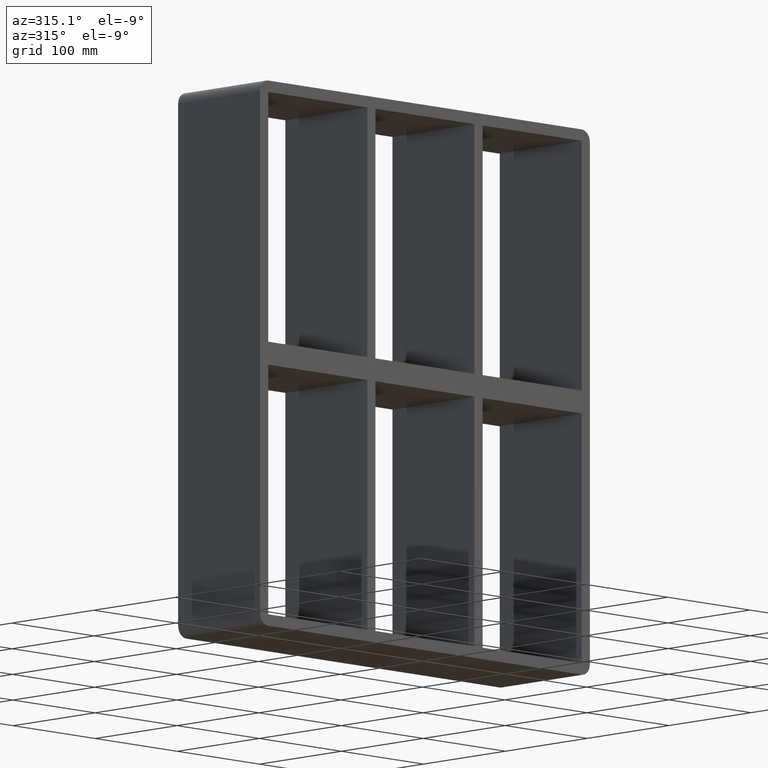
[diagram: clean part render]
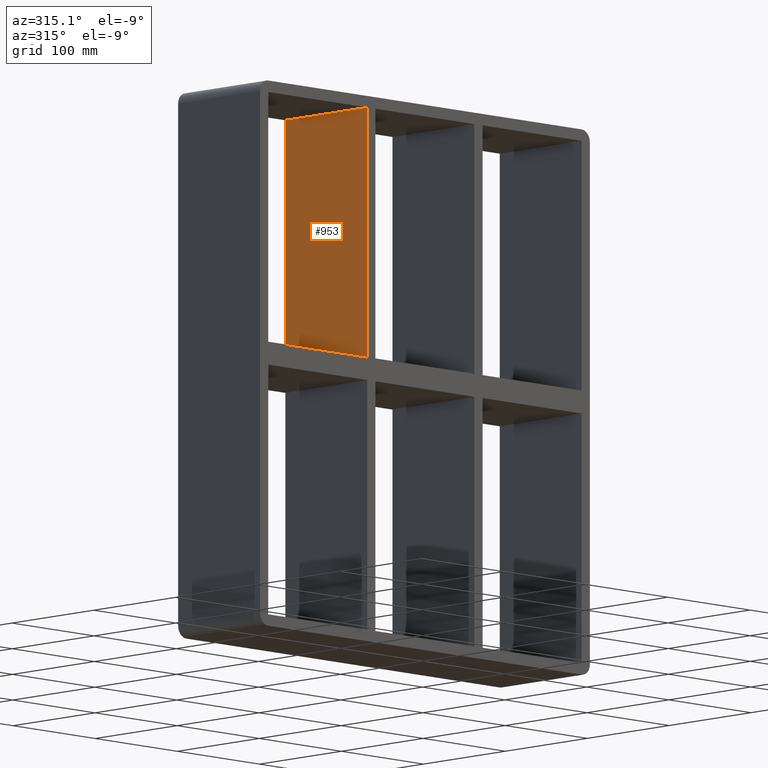
[diagram: same view with one face highlighted and labeled with its STEP entity id]
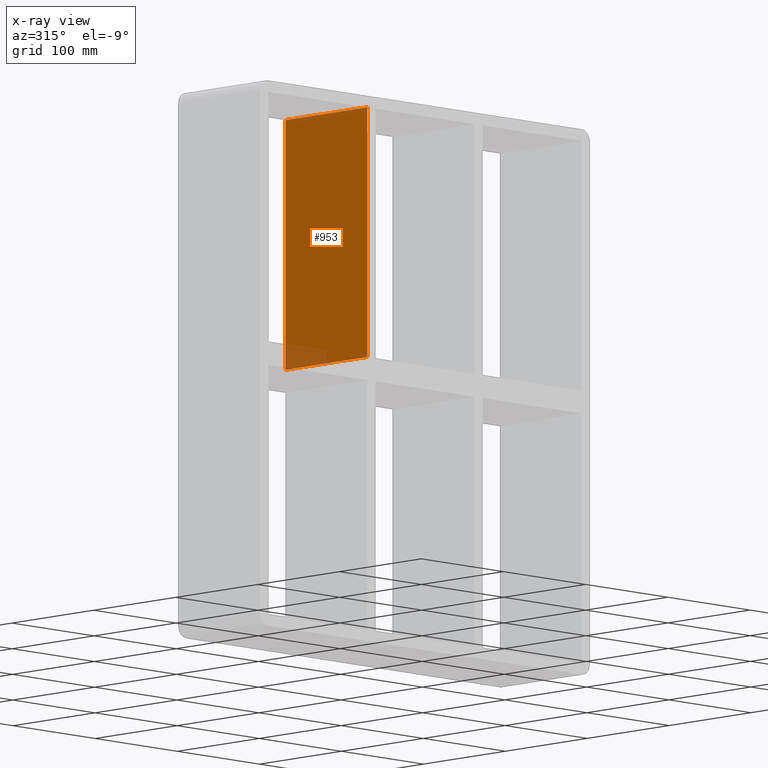
[diagram: x-ray of the same camera — body ghosted, the highlighted face saturated]
A machine part, auxiliary view. The second image highlights one B-rep face of the part: STEP entity #953.
The next image is the same camera in x-ray: the body ghosted, the highlighted face saturated — about 4% of this face is hidden behind the body in this view.
In plain terms, the highlighted planar face has unit normal (-1, 0, 0).
Its self-contained STEP definition (entity closure, byte-faithful):
#495=CARTESIAN_POINT('',(-70.250000000001322,-3.0,228.00000000000006));
#496=VERTEX_POINT('',#495);
#503=CARTESIAN_POINT('',(-70.250000000001279,-3.0,10.0));
#504=VERTEX_POINT('',#503);
#505=CARTESIAN_POINT('',(-70.250000000001265,-3.0,10.0));
#506=DIRECTION('',(0.0,0.0,1.0));
#507=VECTOR('',#506,218.00000000000006);
#508=LINE('',#505,#507);
#509=EDGE_CURVE('',#504,#496,#508,.T.);
#700=CARTESIAN_POINT('',(-70.250000000001279,97.0,10.0));
#701=VERTEX_POINT('',#700);
#702=CARTESIAN_POINT('',(-70.250000000001279,97.0,10.0));
#703=DIRECTION('',(0.0,-1.0,0.0));
#704=VECTOR('',#703,100.0);
#705=LINE('',#702,#704);
#706=EDGE_CURVE('',#701,#504,#705,.T.);
#919=CARTESIAN_POINT('',(-70.250000000001322,97.0,228.00000000000006));
#920=VERTEX_POINT('',#919);
#921=CARTESIAN_POINT('',(-70.250000000001265,97.0,10.0));
#922=DIRECTION('',(0.0,0.0,1.0));
#923=VECTOR('',#922,218.00000000000006);
#924=LINE('',#921,#923);
#925=EDGE_CURVE('',#701,#920,#924,.T.);
#937=CARTESIAN_POINT('',(-70.250000000001222,-3.0,-228.00000000000006));
#938=DIRECTION('',(-1.0,0.0,0.0));
#939=DIRECTION('',(0.0,0.0,1.0));
#940=AXIS2_PLACEMENT_3D('',#937,#938,#939);
#941=PLANE('',#940);
#942=ORIENTED_EDGE('',*,*,#706,.T.);
#943=ORIENTED_EDGE('',*,*,#509,.T.);
#944=CARTESIAN_POINT('',(-70.250000000001322,97.0,228.00000000000006));
#945=DIRECTION('',(0.0,-1.0,0.0));
#946=VECTOR('',#945,100.0);
#947=LINE('',#944,#946);
#948=EDGE_CURVE('',#920,#496,#947,.T.);
#949=ORIENTED_EDGE('',*,*,#948,.F.);
#950=ORIENTED_EDGE('',*,*,#925,.F.);
#951=EDGE_LOOP('',(#942,#943,#949,#950));
#952=FACE_OUTER_BOUND('',#951,.T.);
#953=ADVANCED_FACE('',(#952),#941,.T.);